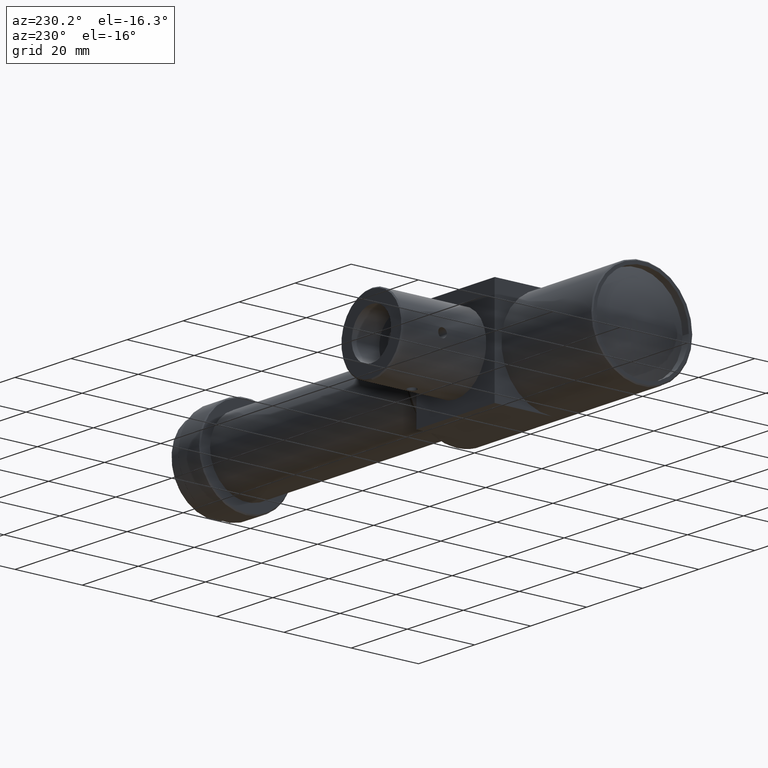
[diagram: clean part render]
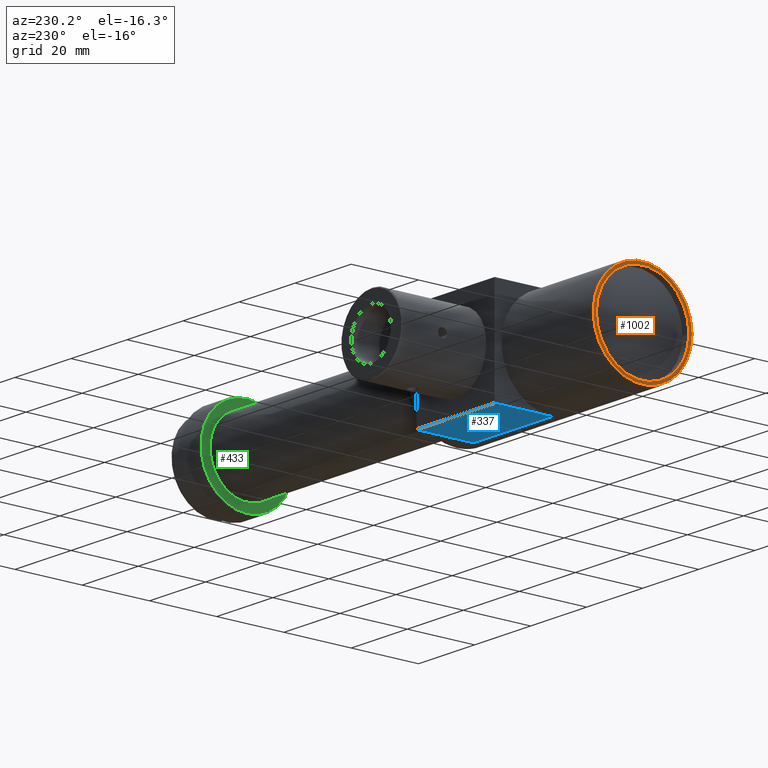
[diagram: same view with three faces highlighted in distinct colors, each labeled with its STEP entity id]
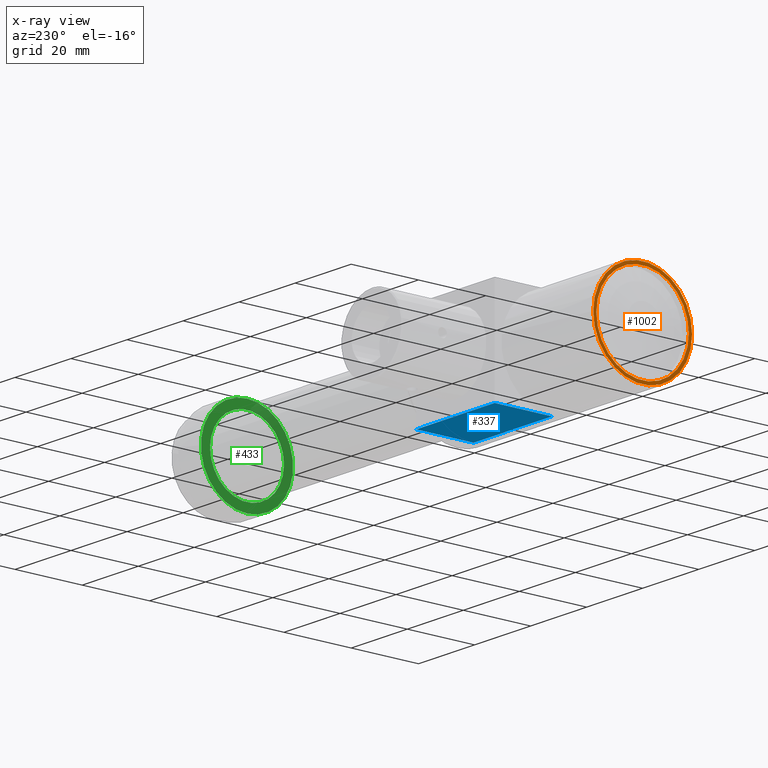
[diagram: x-ray of the same camera — body ghosted, the three highlighted faces saturated]
A machine part, auxiliary view with three faces highlighted in distinct colors.
The next image is the same camera in x-ray (body ghosted, the three faces saturated) — at least one of them is partly hidden behind the body in this view.
Their STEP definitions:

[orange] entity #1002 — the highlighted planar face has unit normal (1, 0, -0).
#137 = VERTEX_POINT ( 'NONE', #535 ) ;
#173 = CIRCLE ( 'NONE', #1168, 14.70000000000000107 ) ;
#184 = DIRECTION ( 'NONE',  ( -1.156482317317871232E-16, 1.000000000000000000, 0.000000000000000000 ) ) ;
#248 = EDGE_LOOP ( 'NONE', ( #302 ) ) ;
#302 = ORIENTED_EDGE ( 'NONE', *, *, #1019, .F. ) ;
#362 = CARTESIAN_POINT ( 'NONE',  ( 1.734723475976807094E-15, -1.548446748183125638E-14, 0.000000000000000000 ) ) ;
#368 = FACE_OUTER_BOUND ( 'NONE', #956, .T. ) ;
#370 = CARTESIAN_POINT ( 'NONE',  ( 1.734723475976807094E-15, -1.564720575331080315E-14, -2.006177025403472516E-33 ) ) ;
#436 = VERTEX_POINT ( 'NONE', #625 ) ;
#476 = DIRECTION ( 'NONE',  ( -1.149412201554173596E-16, 1.000000000000000000, 0.000000000000000000 ) ) ;
#535 = CARTESIAN_POINT ( 'NONE',  ( 3.315165253113795961E-15, -13.75000000000001599, 0.000000000000000000 ) ) ;
#553 = DIRECTION ( 'NONE',  ( 1.000000000000000000, 1.149412201554173596E-16, -0.000000000000000000 ) ) ;
#625 = CARTESIAN_POINT ( 'NONE',  ( 3.469446951953617270E-17, 14.69999999999998508, -2.006177025403472516E-33 ) ) ;
#662 = FACE_BOUND ( 'NONE', #248, .T. ) ;
#668 = CARTESIAN_POINT ( 'NONE',  ( 7.183826259713671255E-17, 13.74999999999998401, 0.000000000000000000 ) ) ;
#682 = EDGE_CURVE ( 'NONE', #436, #436, #173, .T. ) ;
#789 = CIRCLE ( 'NONE', #849, 13.75000000000000000 ) ;
#849 = AXIS2_PLACEMENT_3D ( 'NONE', #362, #1035, #1121 ) ;
#854 = PLANE ( 'NONE',  #1106 ) ;
#949 = DIRECTION ( 'NONE',  ( 1.000000000000000000, 1.156482317317871232E-16, 6.687256751344564677E-33 ) ) ;
#956 = EDGE_LOOP ( 'NONE', ( #1257 ) ) ;
#1002 = ADVANCED_FACE ( 'NONE', ( #662, #368 ), #854, .F. ) ;
#1019 = EDGE_CURVE ( 'NONE', #137, #137, #789, .T. ) ;
#1035 = DIRECTION ( 'NONE',  ( -1.000000000000000000, -1.149412201554173596E-16, -0.000000000000000000 ) ) ;
#1106 = AXIS2_PLACEMENT_3D ( 'NONE', #668, #553, #476 ) ;
#1121 = DIRECTION ( 'NONE',  ( 1.149412201554173842E-16, -1.000000000000000000, 0.000000000000000000 ) ) ;
#1168 = AXIS2_PLACEMENT_3D ( 'NONE', #370, #949, #184 ) ;
#1257 = ORIENTED_EDGE ( 'NONE', *, *, #682, .F. ) ;

[blue] entity #337 — the highlighted planar face has unit normal (0, 0, 1).
#1 = DIRECTION ( 'NONE',  ( -1.000000000000000000, -0.000000000000000000, 0.000000000000000000 ) ) ;
#34 = EDGE_CURVE ( 'NONE', #254, #784, #706, .T. ) ;
#71 = CARTESIAN_POINT ( 'NONE',  ( 32.39999999999998437, 17.00000000000000000, -15.00000000000001243 ) ) ;
#85 = CARTESIAN_POINT ( 'NONE',  ( 60.39999999999999147, 17.00000000000000000, -15.00000000000001243 ) ) ;
#145 = DIRECTION ( 'NONE',  ( 1.000000000000000000, 1.149412201554173596E-16, 0.000000000000000000 ) ) ;
#254 = VERTEX_POINT ( 'NONE', #85 ) ;
#268 = ORIENTED_EDGE ( 'NONE', *, *, #510, .F. ) ;
#273 = ORIENTED_EDGE ( 'NONE', *, *, #34, .F. ) ;
#305 = DIRECTION ( 'NONE',  ( 1.000000000000000000, 0.000000000000000000, -0.000000000000000000 ) ) ;
#330 = ORIENTED_EDGE ( 'NONE', *, *, #1058, .T. ) ;
#337 = ADVANCED_FACE ( 'NONE', ( #412 ), #597, .F. ) ;
#412 = FACE_OUTER_BOUND ( 'NONE', #948, .T. ) ;
#437 = LINE ( 'NONE', #723, #711 ) ;
#460 = VERTEX_POINT ( 'NONE', #982 ) ;
#510 = EDGE_CURVE ( 'NONE', #460, #669, #437, .T. ) ;
#546 = EDGE_CURVE ( 'NONE', #460, #784, #761, .T. ) ;
#570 = AXIS2_PLACEMENT_3D ( 'NONE', #894, #1069, #305 ) ;
#597 = PLANE ( 'NONE',  #570 ) ;
#669 = VERTEX_POINT ( 'NONE', #1244 ) ;
#671 = VECTOR ( 'NONE', #959, 1000.000000000000000 ) ;
#706 = LINE ( 'NONE', #1081, #945 ) ;
#711 = VECTOR ( 'NONE', #145, 1000.000000000000000 ) ;
#723 = CARTESIAN_POINT ( 'NONE',  ( 2.600000000000004974, 8.925112841562611447E-16, -15.00000000000000888 ) ) ;
#761 = LINE ( 'NONE', #71, #671 ) ;
#763 = CARTESIAN_POINT ( 'NONE',  ( 60.39999999999999858, 17.00000000000000000, -15.00000000000001243 ) ) ;
#771 = CARTESIAN_POINT ( 'NONE',  ( 32.39999999999998437, 17.00000000000000000, -15.00000000000001243 ) ) ;
#772 = VECTOR ( 'NONE', #1027, 1000.000000000000000 ) ;
#784 = VERTEX_POINT ( 'NONE', #771 ) ;
#894 = CARTESIAN_POINT ( 'NONE',  ( 32.39999999999998437, 17.00000000000000000, -15.00000000000001066 ) ) ;
#945 = VECTOR ( 'NONE', #1, 1000.000000000000000 ) ;
#948 = EDGE_LOOP ( 'NONE', ( #1029, #273, #330, #268 ) ) ;
#959 = DIRECTION ( 'NONE',  ( 0.000000000000000000, 1.000000000000000000, 0.000000000000000000 ) ) ;
#982 = CARTESIAN_POINT ( 'NONE',  ( 32.39999999999998437, -3.721306152004019502E-15, -15.00000000000001066 ) ) ;
#1027 = DIRECTION ( 'NONE',  ( -0.000000000000000000, -1.000000000000000000, 0.000000000000000000 ) ) ;
#1029 = ORIENTED_EDGE ( 'NONE', *, *, #546, .T. ) ;
#1058 = EDGE_CURVE ( 'NONE', #254, #669, #1241, .T. ) ;
#1069 = DIRECTION ( 'NONE',  ( 0.000000000000000000, 0.000000000000000000, 1.000000000000000000 ) ) ;
#1081 = CARTESIAN_POINT ( 'NONE',  ( 32.39999999999998437, 17.00000000000000000, -15.00000000000001066 ) ) ;
#1241 = LINE ( 'NONE', #763, #772 ) ;
#1244 = CARTESIAN_POINT ( 'NONE',  ( 60.39999999999999858, -5.029519876523314617E-16, -15.00000000000001066 ) ) ;

[green] entity #433 — the highlighted planar face has unit normal (1, 0, -0).
#41 = CARTESIAN_POINT ( 'NONE',  ( 141.1999999999999886, 7.452328041136766812E-16, 0.000000000000000000 ) ) ;
#46 = DIRECTION ( 'NONE',  ( 0.000000000000000000, -1.000000000000000000, 0.000000000000000000 ) ) ;
#111 = EDGE_CURVE ( 'NONE', #915, #915, #1084, .T. ) ;
#124 = CARTESIAN_POINT ( 'NONE',  ( 141.1999999999999886, 8.673617379884035472E-16, 0.000000000000000000 ) ) ;
#213 = ORIENTED_EDGE ( 'NONE', *, *, #929, .F. ) ;
#256 = CARTESIAN_POINT ( 'NONE',  ( 141.1999999999999886, 8.673617379884035472E-16, -13.70000000000001705 ) ) ;
#332 = VERTEX_POINT ( 'NONE', #256 ) ;
#420 = DIRECTION ( 'NONE',  ( 1.000000000000000000, 0.000000000000000000, -0.000000000000000000 ) ) ;
#433 = ADVANCED_FACE ( 'NONE', ( #877, #500 ), #514, .F. ) ;
#463 = AXIS2_PLACEMENT_3D ( 'NONE', #41, #641, #46 ) ;
#500 = FACE_OUTER_BOUND ( 'NONE', #733, .T. ) ;
#514 = PLANE ( 'NONE',  #608 ) ;
#608 = AXIS2_PLACEMENT_3D ( 'NONE', #1180, #1185, #1263 ) ;
#641 = DIRECTION ( 'NONE',  ( -1.000000000000000000, -1.149412201554173596E-16, -0.000000000000000000 ) ) ;
#644 = CARTESIAN_POINT ( 'NONE',  ( 141.1999999999999886, -10.99999999999998401, 0.000000000000000000 ) ) ;
#708 = EDGE_LOOP ( 'NONE', ( #940 ) ) ;
#733 = EDGE_LOOP ( 'NONE', ( #213 ) ) ;
#815 = DIRECTION ( 'NONE',  ( 0.000000000000000000, 0.000000000000000000, -1.000000000000000000 ) ) ;
#877 = FACE_BOUND ( 'NONE', #708, .T. ) ;
#915 = VERTEX_POINT ( 'NONE', #644 ) ;
#929 = EDGE_CURVE ( 'NONE', #332, #332, #1212, .T. ) ;
#940 = ORIENTED_EDGE ( 'NONE', *, *, #111, .F. ) ;
#1084 = CIRCLE ( 'NONE', #463, 10.99999999999998401 ) ;
#1170 = AXIS2_PLACEMENT_3D ( 'NONE', #124, #420, #815 ) ;
#1180 = CARTESIAN_POINT ( 'NONE',  ( 141.1999999999999886, 10.99999999999998046, 0.000000000000000000 ) ) ;
#1185 = DIRECTION ( 'NONE',  ( 1.000000000000000000, 1.149412201554173596E-16, -0.000000000000000000 ) ) ;
#1212 = CIRCLE ( 'NONE', #1170, 13.70000000000001705 ) ;
#1263 = DIRECTION ( 'NONE',  ( -1.149412201554173596E-16, 1.000000000000000000, 0.000000000000000000 ) ) ;